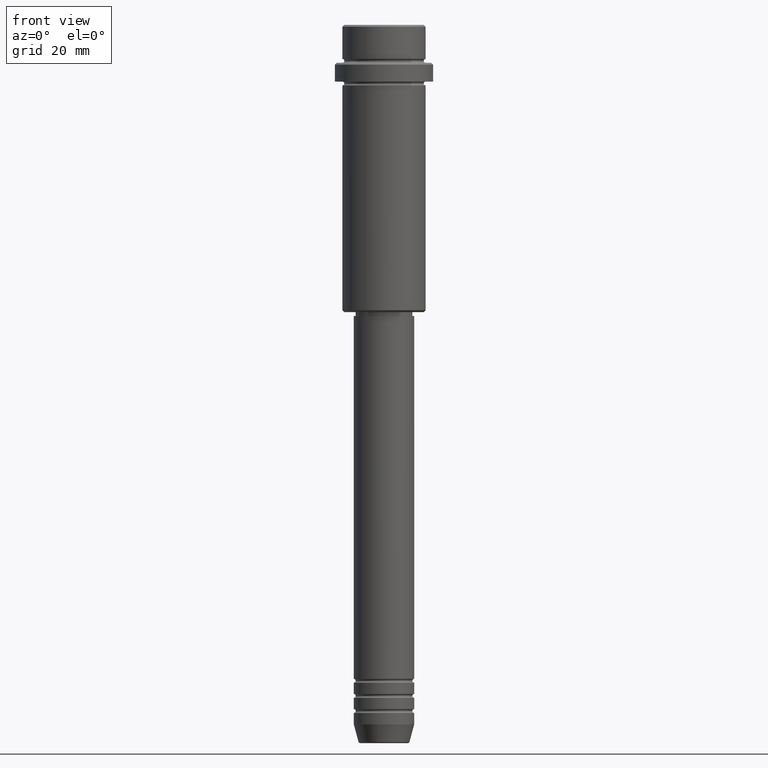
[diagram: clean part render]
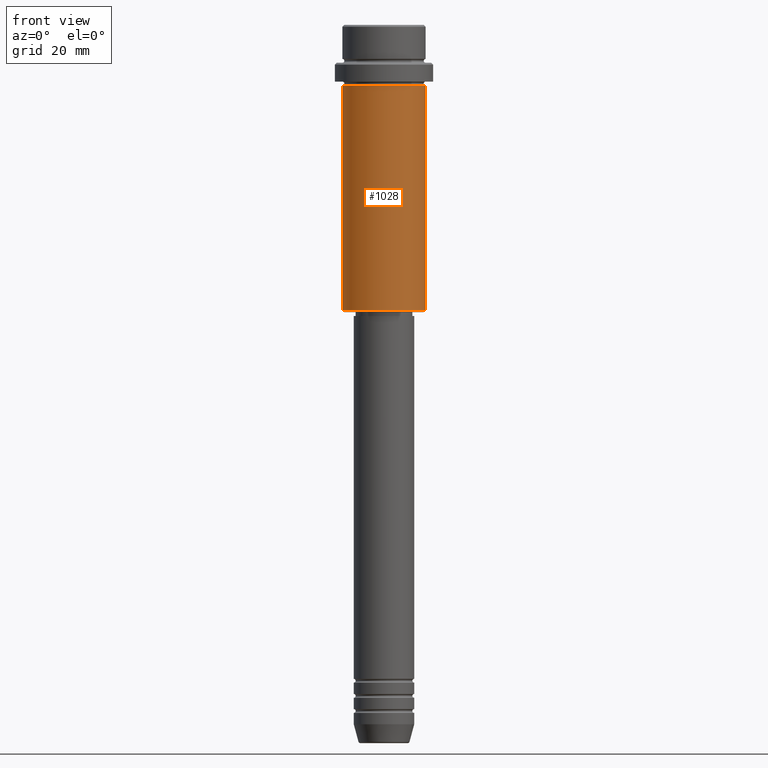
[diagram: same view with one face highlighted and labeled with its STEP entity id]
A machine part, front view. The second image highlights one B-rep face of the part: STEP entity #1028.
In plain terms, the highlighted cylindrical surface (partial cylindrical patch) has radius 11 mm, axis along (-0, -0, 1).
Its self-contained STEP definition (entity closure, byte-faithful):
#39 = CARTESIAN_POINT ( 'NONE',  ( 0.000000000000000000, 0.000000000000000000, -16.00000000000000355 ) ) ;
#62 = CARTESIAN_POINT ( 'NONE',  ( 10.99999999999997158, 0.000000000000000000, -16.00000000000000355 ) ) ;
#76 = DIRECTION ( 'NONE',  ( -1.000000000000000000, 0.000000000000000000, 0.000000000000000000 ) ) ;
#78 = EDGE_CURVE ( 'NONE', #1294, #1124, #1058, .T. ) ;
#89 = VERTEX_POINT ( 'NONE', #62 ) ;
#98 = DIRECTION ( 'NONE',  ( -0.000000000000000000, -0.000000000000000000, 1.000000000000000000 ) ) ;
#111 = AXIS2_PLACEMENT_3D ( 'NONE', #513, #963, #1189 ) ;
#158 = DIRECTION ( 'NONE',  ( 1.000000000000000000, 0.000000000000000000, 0.000000000000000000 ) ) ;
#188 = EDGE_LOOP ( 'NONE', ( #1369, #1250, #357, #777 ) ) ;
#335 = CARTESIAN_POINT ( 'NONE',  ( -10.99999999999997158, 1.347111479062085841E-15, -16.00000000000000355 ) ) ;
#338 = VERTEX_POINT ( 'NONE', #1405 ) ;
#357 = ORIENTED_EDGE ( 'NONE', *, *, #1035, .T. ) ;
#367 = AXIS2_PLACEMENT_3D ( 'NONE', #39, #613, #158 ) ;
#400 = CARTESIAN_POINT ( 'NONE',  ( 0.000000000000000000, 0.000000000000000000, -75.49999999999998579 ) ) ;
#491 = EDGE_CURVE ( 'NONE', #1294, #338, #530, .T. ) ;
#513 = CARTESIAN_POINT ( 'NONE',  ( 0.000000000000000000, 0.000000000000000000, 0.000000000000000000 ) ) ;
#530 = CIRCLE ( 'NONE', #664, 10.99999999999998757 ) ;
#613 = DIRECTION ( 'NONE',  ( -0.000000000000000000, -0.000000000000000000, 1.000000000000000000 ) ) ;
#664 = AXIS2_PLACEMENT_3D ( 'NONE', #400, #1171, #76 ) ;
#745 = CARTESIAN_POINT ( 'NONE',  ( -10.99999999999998757, 1.347111479062086827E-15, 0.000000000000000000 ) ) ;
#753 = FACE_OUTER_BOUND ( 'NONE', #188, .T. ) ;
#756 = LINE ( 'NONE', #1176, #925 ) ;
#772 = EDGE_CURVE ( 'NONE', #1124, #89, #978, .T. ) ;
#777 = ORIENTED_EDGE ( 'NONE', *, *, #772, .F. ) ;
#851 = CYLINDRICAL_SURFACE ( 'NONE', #111, 10.99999999999998757 ) ;
#876 = VECTOR ( 'NONE', #972, 1000.000000000000000 ) ;
#917 = CARTESIAN_POINT ( 'NONE',  ( -10.99999999999998757, 1.347111479062086827E-15, -75.49999999999998579 ) ) ;
#925 = VECTOR ( 'NONE', #98, 1000.000000000000000 ) ;
#963 = DIRECTION ( 'NONE',  ( -0.000000000000000000, -0.000000000000000000, 1.000000000000000000 ) ) ;
#972 = DIRECTION ( 'NONE',  ( -0.000000000000000000, -0.000000000000000000, 1.000000000000000000 ) ) ;
#978 = CIRCLE ( 'NONE', #367, 10.99999999999997158 ) ;
#1028 = ADVANCED_FACE ( 'NONE', ( #753 ), #851, .T. ) ;
#1035 = EDGE_CURVE ( 'NONE', #338, #89, #756, .T. ) ;
#1058 = LINE ( 'NONE', #745, #876 ) ;
#1124 = VERTEX_POINT ( 'NONE', #335 ) ;
#1171 = DIRECTION ( 'NONE',  ( -0.000000000000000000, -0.000000000000000000, 1.000000000000000000 ) ) ;
#1176 = CARTESIAN_POINT ( 'NONE',  ( 10.99999999999998757, 0.000000000000000000, 0.000000000000000000 ) ) ;
#1189 = DIRECTION ( 'NONE',  ( 1.000000000000000000, 0.000000000000000000, 0.000000000000000000 ) ) ;
#1250 = ORIENTED_EDGE ( 'NONE', *, *, #491, .T. ) ;
#1294 = VERTEX_POINT ( 'NONE', #917 ) ;
#1369 = ORIENTED_EDGE ( 'NONE', *, *, #78, .F. ) ;
#1405 = CARTESIAN_POINT ( 'NONE',  ( 10.99999999999998757, 0.000000000000000000, -75.49999999999998579 ) ) ;